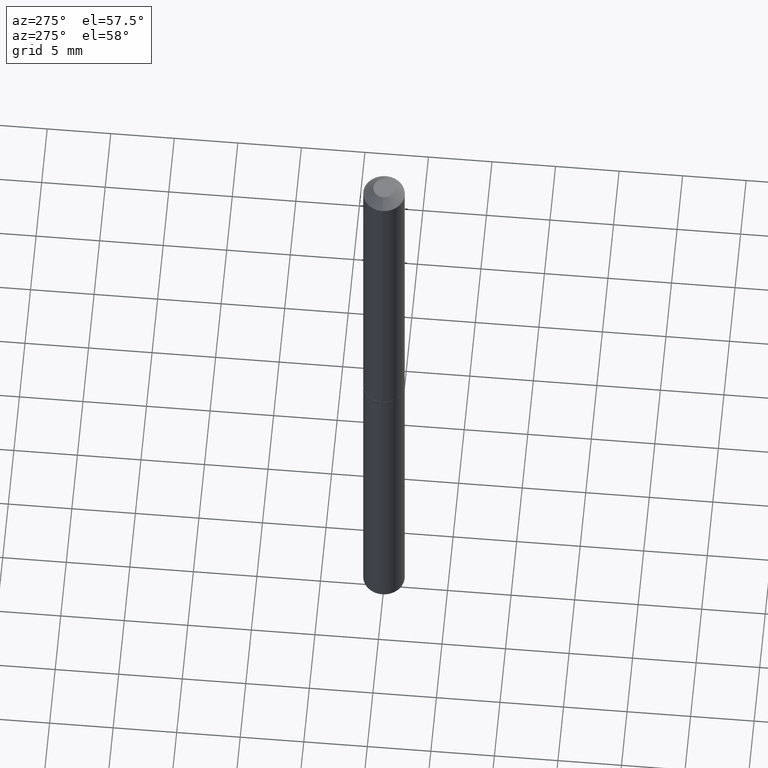
[diagram: clean part render]
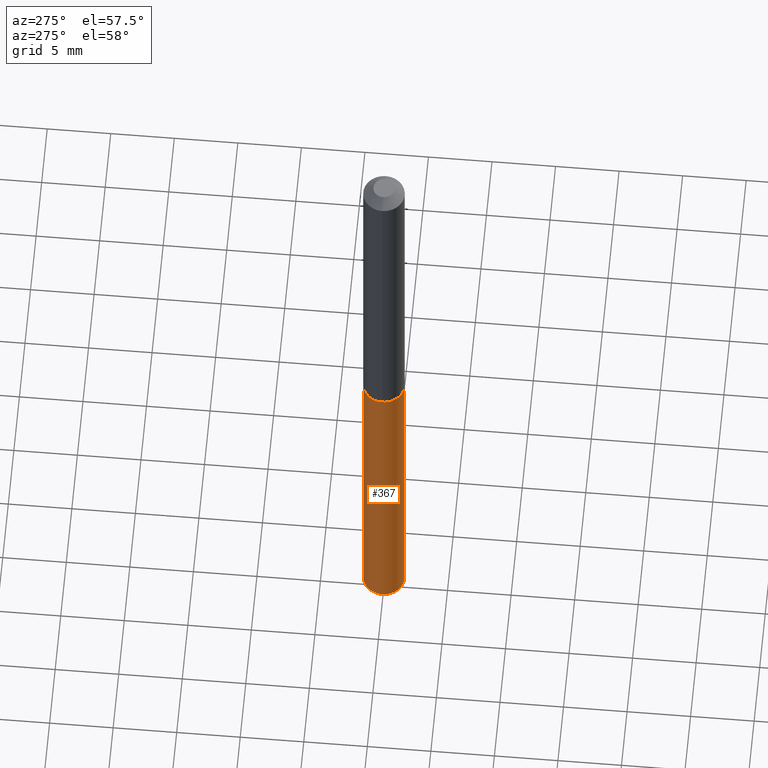
[diagram: same view with one face highlighted and labeled with its STEP entity id]
A machine part, auxiliary view. The second image highlights one B-rep face of the part: STEP entity #367.
In plain terms, the highlighted cylindrical surface (edge-blend (fillet) strip) has radius 1.632 mm, axis along (-0, 0, 1).
Its self-contained STEP definition (entity closure, byte-faithful):
#19 = EDGE_LOOP ( 'NONE', ( #173, #136, #333, #290 ) ) ;
#25 = EDGE_CURVE ( 'NONE', #324, #143, #223, .T. ) ;
#36 = AXIS2_PLACEMENT_3D ( 'NONE', #106, #327, #171 ) ;
#41 = EDGE_CURVE ( 'NONE', #358, #347, #267, .T. ) ;
#51 = DIRECTION ( 'NONE',  ( -2.445478788454027702E-29, 3.491467043665938443E-15, 1.000000000000000000 ) ) ;
#64 = DIRECTION ( 'NONE',  ( -2.445478788454027702E-29, 3.491467043665938443E-15, 1.000000000000000000 ) ) ;
#74 = DIRECTION ( 'NONE',  ( -6.982962677686265922E-15, -1.000000000000000000, 4.251903492084456561E-15 ) ) ;
#77 = CARTESIAN_POINT ( 'NONE',  ( 2.759711547779927161E-29, -3.940136690884490538E-15, -1.128500000000000059 ) ) ;
#80 = CARTESIAN_POINT ( 'NONE',  ( 4.565237077259187133E-16, 0.06424999999999217448, -2.232784264386301398 ) ) ;
#91 = CARTESIAN_POINT ( 'NONE',  ( -4.486553520412877630E-16, -0.06425000000000775924, -2.232784264386300954 ) ) ;
#98 = DIRECTION ( 'NONE',  ( -2.445478788454027702E-29, 3.491467043665938048E-15, 1.000000000000000000 ) ) ;
#106 = CARTESIAN_POINT ( 'NONE',  ( 2.759711547779927161E-29, -3.940136690884490538E-15, -1.128500000000000059 ) ) ;
#132 = FACE_OUTER_BOUND ( 'NONE', #19, .T. ) ;
#136 = ORIENTED_EDGE ( 'NONE', *, *, #25, .T. ) ;
#137 = LINE ( 'NONE', #363, #266 ) ;
#143 = VERTEX_POINT ( 'NONE', #91 ) ;
#165 = DIRECTION ( 'NONE',  ( -2.445478788454027702E-29, 3.491467043665938048E-15, 1.000000000000000000 ) ) ;
#171 = DIRECTION ( 'NONE',  ( -6.982962677686265922E-15, -1.000000000000000000, 4.251903492084456561E-15 ) ) ;
#173 = ORIENTED_EDGE ( 'NONE', *, *, #292, .F. ) ;
#196 = CARTESIAN_POINT ( 'NONE',  ( -4.486553520413150773E-16, -0.06425000000000394285, -1.128499999999999837 ) ) ;
#200 = LINE ( 'NONE', #321, #344 ) ;
#223 = CIRCLE ( 'NONE', #342, 0.06425000000000000155 ) ;
#231 = AXIS2_PLACEMENT_3D ( 'NONE', #77, #165, #74 ) ;
#254 = CYLINDRICAL_SURFACE ( 'NONE', #36, 0.06425000000000000155 ) ;
#266 = VECTOR ( 'NONE', #64, 39.37007874015748143 ) ;
#267 = CIRCLE ( 'NONE', #231, 0.06425000000000000155 ) ;
#287 = CARTESIAN_POINT ( 'NONE',  ( 4.565237077259191077E-16, 0.06424999999999606026, -1.128500000000000503 ) ) ;
#290 = ORIENTED_EDGE ( 'NONE', *, *, #41, .F. ) ;
#292 = EDGE_CURVE ( 'NONE', #324, #358, #200, .T. ) ;
#321 = CARTESIAN_POINT ( 'NONE',  ( 4.565237077258918920E-16, 0.06424999999999606026, -1.128500000000000503 ) ) ;
#324 = VERTEX_POINT ( 'NONE', #80 ) ;
#327 = DIRECTION ( 'NONE',  ( -2.445478788454027702E-29, 3.491467043665938048E-15, 1.000000000000000000 ) ) ;
#333 = ORIENTED_EDGE ( 'NONE', *, *, #386, .T. ) ;
#339 = DIRECTION ( 'NONE',  ( -6.982962677686265922E-15, -1.000000000000000000, 4.251903492084456561E-15 ) ) ;
#341 = CARTESIAN_POINT ( 'NONE',  ( 5.460215292760186058E-29, -7.795708806828143374E-15, -2.232784264386301398 ) ) ;
#342 = AXIS2_PLACEMENT_3D ( 'NONE', #341, #98, #339 ) ;
#344 = VECTOR ( 'NONE', #51, 39.37007874015748143 ) ;
#347 = VERTEX_POINT ( 'NONE', #196 ) ;
#358 = VERTEX_POINT ( 'NONE', #287 ) ;
#363 = CARTESIAN_POINT ( 'NONE',  ( -4.486553520413150773E-16, -0.06425000000000394285, -1.128499999999999837 ) ) ;
#367 = ADVANCED_FACE ( 'NONE', ( #132 ), #254, .T. ) ;
#386 = EDGE_CURVE ( 'NONE', #143, #347, #137, .T. ) ;